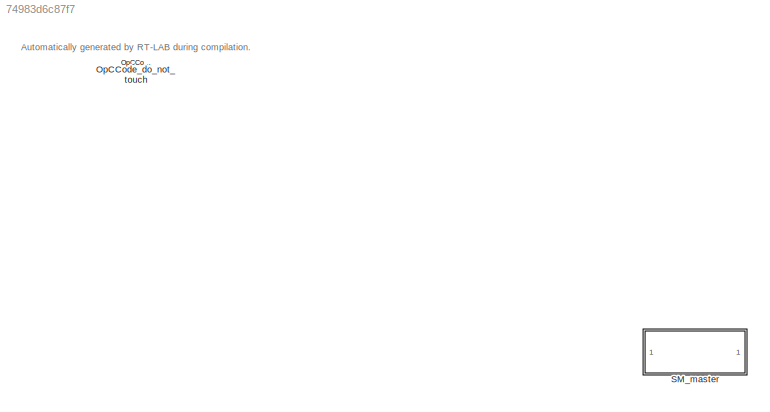
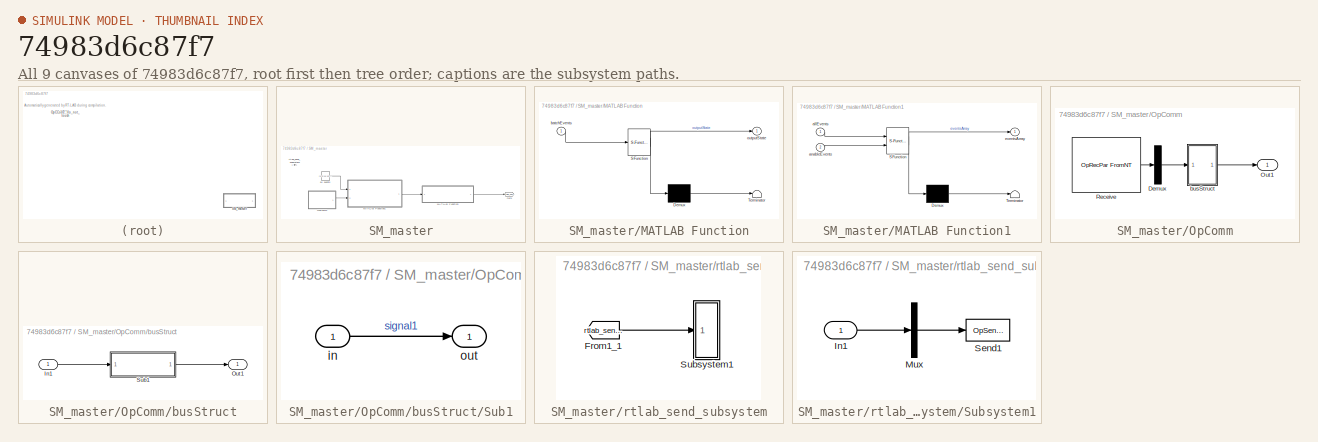
[diagram: thumbnail index - all 9 canvases of the model, root first then tree order]
MODEL slx_74983d6c87f7
KIND model
CONFIG AbsTol = auto
CONFIG EnableMultiTasking = on
CONFIG FixedStep = 0.001
CONFIG MaxStep = auto
CONFIG MinStep = auto
CONFIG RelTol = 1e-3
CONFIG SampleTimeConstraint = Unconstrained
CONFIG SolverName = ode4
CONFIG StartTime = 0.0
CONFIG StopTime = inf
WORKSPACE source: MATLAB code (in-file)
WORKSPACE code: addpath src/model
WORKSPACE code: addpath src/utils
WORKSPACE utils1 = StateMachineUtils
WORKSPACE utils1 = utils1.loadEventsInAds('resources/tct/ALLEVENT.ADS')
WORKSPACE utils1 = utils1.loadDisabledEventsInPdt('resources/tct/supervisor1/DATA_SIMSUP1_MG1.PDT')
WORKSPACE utils1 = utils1.loadTransitionsInAds('resources/tct/supervisor1/SIMSUP1_MG1.ADS')
WORKSPACE encodedStates1 = StateEncoder.encode(utils1.statesArray)
WORKSPACE transitions1 = utils1.transitions
WORKSPACE allEvents1 = utils1.eventsArray
BLOCK [Reference] OpCCode_do_not_touch  REF=opal_lib/Communication/OpCCode
  Ports = []
  SourceBlock = opal_lib/Communication/OpCCode
BLOCK [SubSystem] SM_master
  Ports = []
  RequestExecContextInheritance = off
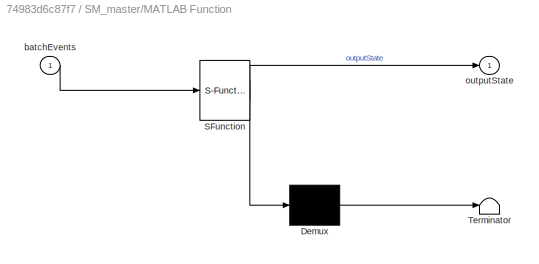
BLOCK [SubSystem] SM_master/MATLAB Function
  ErrorFcn = Stateflow.Translate.translate
  PermitHierarchicalResolution = ExplicitOnly
  Ports = [1, 1]
  RequestExecContextInheritance = off
  SFBlockType = MATLAB Function
  TreatAsAtomicUnit = on
BLOCK [Demux] SM_master/MATLAB Function/ Demux 
  Outputs = 1
  Ports = [1, 1]
BLOCK [S-Function] SM_master/MATLAB Function/ SFunction 
  EnableBusSupport = on
  FunctionName = sf_sfun
  Parameters = allEvents1,encodedStates1,transitions1
  PortCounts = [1 2]
  Ports = [1, 2]
  SFcnIsStateOwnerBlock = off
  SFunctionDeploymentMode = off
  Tag = Stateflow S-Function 2
BLOCK [Terminator] SM_master/MATLAB Function/ Terminator 
BLOCK [Inport] SM_master/MATLAB Function/batchEvents
BLOCK [Outport] SM_master/MATLAB Function/outputState
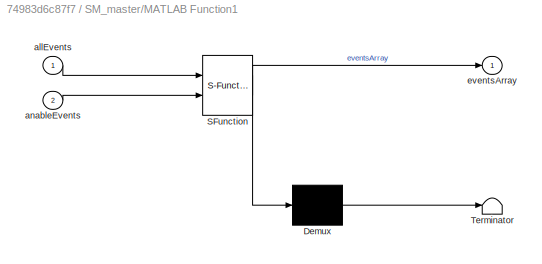
BLOCK [SubSystem] SM_master/MATLAB Function1
  ErrorFcn = Stateflow.Translate.translate
  PermitHierarchicalResolution = ExplicitOnly
  Ports = [2, 1]
  RequestExecContextInheritance = off
  SFBlockType = MATLAB Function
  TreatAsAtomicUnit = on
BLOCK [Demux] SM_master/MATLAB Function1/ Demux 
  Outputs = 1
  Ports = [1, 1]
BLOCK [S-Function] SM_master/MATLAB Function1/ SFunction 
  EnableBusSupport = on
  FunctionName = sf_sfun
  PortCounts = [2 2]
  Ports = [2, 2]
  SFcnIsStateOwnerBlock = off
  SFunctionDeploymentMode = off
  Tag = Stateflow S-Function 1
BLOCK [Terminator] SM_master/MATLAB Function1/ Terminator 
BLOCK [Inport] SM_master/MATLAB Function1/allEvents
BLOCK [Inport] SM_master/MATLAB Function1/anableEvents
  Port = 2
BLOCK [Outport] SM_master/MATLAB Function1/eventsArray
BLOCK [SubSystem] SM_master/OpComm
  Ports = [0, 1]
  RequestExecContextInheritance = off
BLOCK [Demux] SM_master/OpComm/Demux
  Outputs = [3]
  Ports = [1, 1]
BLOCK [Outport] SM_master/OpComm/Out1
BLOCK [Reference] SM_master/OpComm/Receive  REF=opal_lib/Communication/OpRecPar
FromNT
  Ports = [0, 1]
  SourceBlock = opal_lib/Communication/OpRecPar\nFromNT
  SourceType = OPAL Receive Icon
BLOCK [SubSystem] SM_master/OpComm/busStruct
  Ports = [1, 1]
  RequestExecContextInheritance = off
BLOCK [Inport] SM_master/OpComm/busStruct/In1
BLOCK [Outport] SM_master/OpComm/busStruct/Out1
BLOCK [SubSystem] SM_master/OpComm/busStruct/Sub1
  Ports = [1, 1]
  RequestExecContextInheritance = off
BLOCK [Inport] SM_master/OpComm/busStruct/Sub1/in
BLOCK [Outport] SM_master/OpComm/busStruct/Sub1/out
BLOCK [Goto] SM_master/Out1
  GotoTag = rtlab_send_1
  TagVisibility = global
BLOCK [Constant] SM_master/all events
  Value = [1;3;11;12;13;14;16;21;23;25;27;31;32;33;34;36;41;43;51;52;54;56;58;61;63]
BLOCK [SubSystem] SM_master/rtlab_send_subsystem
  Ports = []
  Priority = -100
  RequestExecContextInheritance = off
BLOCK [From] SM_master/rtlab_send_subsystem/From1_1
  GotoTag = rtlab_send_1
  TagVisibility = global
BLOCK [SubSystem] SM_master/rtlab_send_subsystem/Subsystem1
  Ports = [1]
  RequestExecContextInheritance = off
BLOCK [Inport] SM_master/rtlab_send_subsystem/Subsystem1/In1
BLOCK [Mux] SM_master/rtlab_send_subsystem/Subsystem1/Mux
  Inputs = 1
  Ports = [1, 1]
BLOCK [Reference] SM_master/rtlab_send_subsystem/Subsystem1/Send1  REF=opal_lib/Communication/OpSendToNT
  Ports = [1]
  SourceBlock = opal_lib/Communication/OpSendToNT
  SourceType = OPAL Send Icon
ANNOTATION (root): Automatically generated by RT-LAB during compilation.
LINE SM_master/MATLAB Function1:1 -> SM_master/MATLAB Function:1
LINE SM_master/MATLAB Function:1 -> SM_master/Out1:1
LINE SM_master/OpComm/Demux:1 -> SM_master/OpComm/busStruct:1
LINE SM_master/OpComm/Receive:1 -> SM_master/OpComm/Demux:1
LINE SM_master/OpComm/busStruct/In1:1 -> SM_master/OpComm/busStruct/Sub1:1
LINE SM_master/OpComm/busStruct/Sub1/in:1 -> SM_master/OpComm/busStruct/Sub1/out:1
LINE SM_master/OpComm/busStruct/Sub1:1 -> SM_master/OpComm/busStruct/Out1:1
LINE SM_master/OpComm/busStruct:1 -> SM_master/OpComm/Out1:1
LINE SM_master/OpComm:1 -> SM_master/MATLAB Function1:2
LINE SM_master/all events:1 -> SM_master/MATLAB Function1:1
LINE SM_master/rtlab_send_subsystem/From1_1:1 -> SM_master/rtlab_send_subsystem/Subsystem1:1
LINE SM_master/rtlab_send_subsystem/Subsystem1/In1:1 -> SM_master/rtlab_send_subsystem/Subsystem1/Mux:1
LINE SM_master/rtlab_send_subsystem/Subsystem1/Mux:1 -> SM_master/rtlab_send_subsystem/Subsystem1/Send1:1
CHART SM_master/MATLAB Function1 states=1 transitions=1
  STATE_LABEL 'eML_blk_kernel()'
  STATE_LABEL 'SCRIPT:\nfunction eventsArray = eventsGenerator(allEvents, anableEvents)\n\n[~, indexes] = ismember(anableEvents, allEvents);\n\neventsArray = zeros(length(allEvents), 1);\n\neventsArray(indexes) = 1;\n'
CHART SM_master/MATLAB Function states=1 transitions=1
  STATE_LABEL 'eML_blk_kernel()'
  STATE_LABEL 'SCRIPT:\nfunction outputState  = stateMachine1(batchEvents, transitions1, allEvents1, encodedStates1)\n% State Machine with parameters from files.\n% Receives a batch of events and process one event at time, starting with\n% the event of index 1.\n% batchEvents: array with 0s and 1s where 1 is the enabled event while 0,\n% is disabled event;\n% allEvents: numbers of the events;\n% transitions: matrix of t...<+732ch>'
CHART  states=0 transitions=0
CHART  states=0 transitions=0
